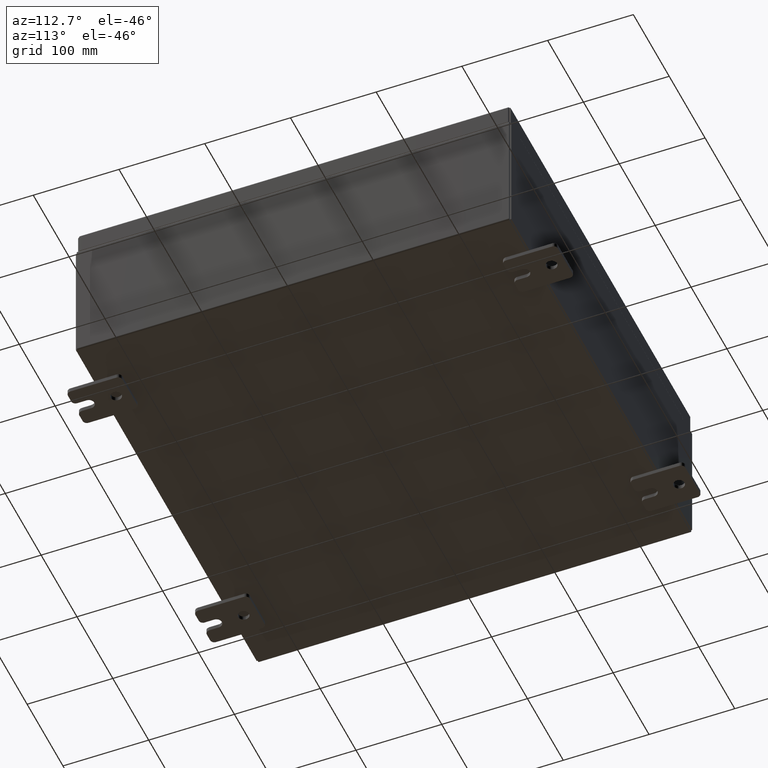
[diagram: clean part render]
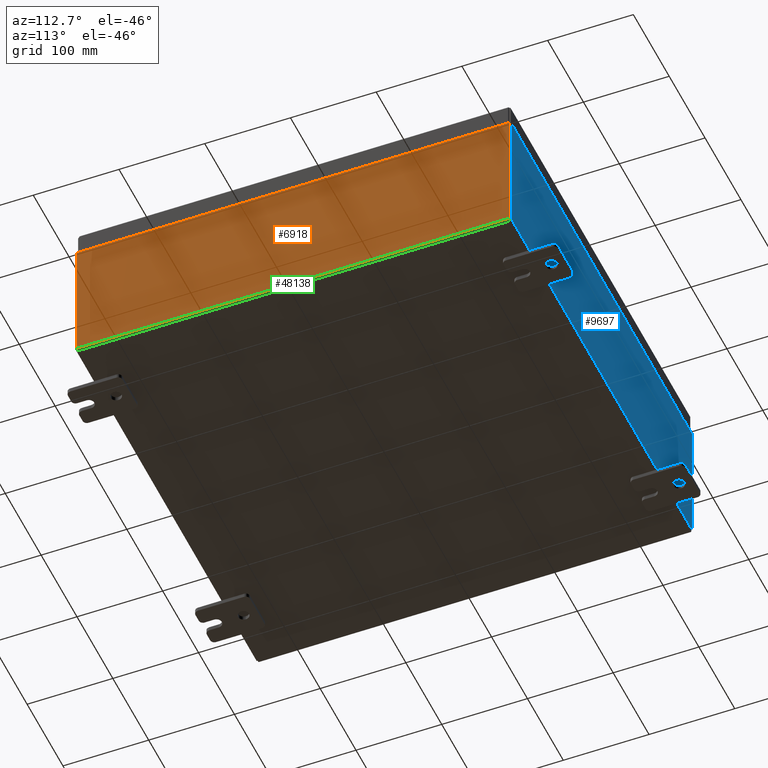
[diagram: same view with three faces highlighted in distinct colors, each labeled with its STEP entity id]
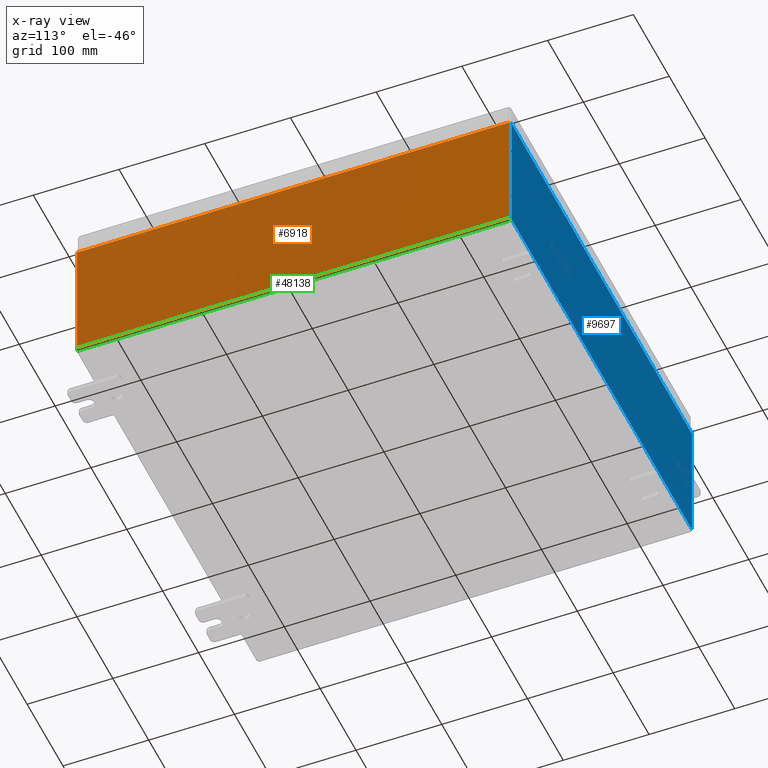
[diagram: x-ray of the same camera — body ghosted, the three highlighted faces saturated]
A machine part, auxiliary view with three faces highlighted in distinct colors.
The next image is the same camera in x-ray (body ghosted, the three faces saturated) — at least one of them is partly hidden behind the body in this view.
Their STEP definitions:

[orange] entity #6918 — the highlighted planar face has unit normal (-1, 0, 0).
#261 = CARTESIAN_POINT ( 'NONE',  ( 10.00000000000000000, 0.0000000000000000000, -3.344806387242682200E-014 ) ) ;
#2388 = DIRECTION ( 'NONE',  ( -0.0000000000000000000, -1.000000000000000000, -0.0000000000000000000 ) ) ;
#6826 = CARTESIAN_POINT ( 'NONE',  ( 10.00000000000001800, 9.925299999999998200, 5.837600000000000100 ) ) ;
#6918 = ADVANCED_FACE ( 'NONE', ( #40494 ), #53369, .F. ) ;
#9975 = DIRECTION ( 'NONE',  ( -1.000000000000000000, 0.0000000000000000000, 3.319545939341922800E-015 ) ) ;
#12065 = CARTESIAN_POINT ( 'NONE',  ( 10.00000000000000000, 9.925300000000001800, -3.344806387242682200E-014 ) ) ;
#12938 = ORIENTED_EDGE ( 'NONE', *, *, #53053, .F. ) ;
#13193 = EDGE_CURVE ( 'NONE', #52707, #28190, #24924, .T. ) ;
#14969 = ORIENTED_EDGE ( 'NONE', *, *, #13193, .T. ) ;
#19295 = EDGE_CURVE ( 'NONE', #28190, #36712, #25426, .T. ) ;
#20957 = CARTESIAN_POINT ( 'NONE',  ( 10.00000000000000000, -9.925299999999998200, -3.344806387242682200E-014 ) ) ;
#24022 = CARTESIAN_POINT ( 'NONE',  ( 10.00000000000001800, 9.925299999999996500, 5.837600000000000100 ) ) ;
#24924 = LINE ( 'NONE', #6826, #60551 ) ;
#25426 = LINE ( 'NONE', #20957, #62578 ) ;
#28087 = AXIS2_PLACEMENT_3D ( 'NONE', #261, #9975, #43840 ) ;
#28190 = VERTEX_POINT ( 'NONE', #40258 ) ;
#29353 = LINE ( 'NONE', #12065, #43717 ) ;
#30932 = ORIENTED_EDGE ( 'NONE', *, *, #19295, .T. ) ;
#31391 = CARTESIAN_POINT ( 'NONE',  ( 10.00000000000000000, -9.925299999999998200, 0.01299999999999986800 ) ) ;
#32803 = VECTOR ( 'NONE', #2388, 39.37007874015748100 ) ;
#34942 = VERTEX_POINT ( 'NONE', #58573 ) ;
#36712 = VERTEX_POINT ( 'NONE', #61494 ) ;
#40258 = CARTESIAN_POINT ( 'NONE',  ( 10.00000000000002000, -9.925299999999998200, 5.837600000000000100 ) ) ;
#40494 = FACE_OUTER_BOUND ( 'NONE', #52684, .T. ) ;
#40681 = DIRECTION ( 'NONE',  ( -0.0000000000000000000, -1.000000000000000000, -0.0000000000000000000 ) ) ;
#43717 = VECTOR ( 'NONE', #45928, 39.37007874015748100 ) ;
#43840 = DIRECTION ( 'NONE',  ( 3.319545939341922800E-015, 0.0000000000000000000, 1.000000000000000000 ) ) ;
#45928 = DIRECTION ( 'NONE',  ( 3.319545939341922800E-015, 0.0000000000000000000, 1.000000000000000000 ) ) ;
#46617 = EDGE_CURVE ( 'NONE', #34942, #52707, #29353, .T. ) ;
#48726 = ORIENTED_EDGE ( 'NONE', *, *, #46617, .T. ) ;
#52684 = EDGE_LOOP ( 'NONE', ( #14969, #30932, #12938, #48726 ) ) ;
#52707 = VERTEX_POINT ( 'NONE', #24022 ) ;
#53053 = EDGE_CURVE ( 'NONE', #34942, #36712, #58608, .T. ) ;
#53369 = PLANE ( 'NONE',  #28087 ) ;
#54837 = DIRECTION ( 'NONE',  ( -3.319545939341922800E-015, 0.0000000000000000000, -1.000000000000000000 ) ) ;
#58573 = CARTESIAN_POINT ( 'NONE',  ( 10.00000000000000000, 9.925300000000000000, 0.01299999999999986800 ) ) ;
#58608 = LINE ( 'NONE', #31391, #32803 ) ;
#60551 = VECTOR ( 'NONE', #40681, 39.37007874015748100 ) ;
#61494 = CARTESIAN_POINT ( 'NONE',  ( 10.00000000000000000, -9.925299999999998200, 0.01299999999999985900 ) ) ;
#62578 = VECTOR ( 'NONE', #54837, 39.37007874015748100 ) ;

[blue] entity #9697 — the highlighted planar face has unit normal (0, -1, 0).
#562 = CARTESIAN_POINT ( 'NONE',  ( -8.887200000000000000, 0.0000000000000000000, 2.912300000000000600 ) ) ;
#649 = VERTEX_POINT ( 'NONE', #61772 ) ;
#2378 = ORIENTED_EDGE ( 'NONE', *, *, #27128, .T. ) ;
#3597 = DIRECTION ( 'NONE',  ( 0.0000000000000000000, 0.0000000000000000000, 1.000000000000000000 ) ) ;
#4119 = AXIS2_PLACEMENT_3D ( 'NONE', #55470, #26453, #60346 ) ;
#4380 = EDGE_CURVE ( 'NONE', #43705, #27585, #31574, .T. ) ;
#5065 = VECTOR ( 'NONE', #45715, 39.37007874015748100 ) ;
#5783 = VERTEX_POINT ( 'NONE', #60524 ) ;
#6219 = CARTESIAN_POINT ( 'NONE',  ( 9.925300000000000000, 0.0000000000000000000, -2.925299999999999600 ) ) ;
#6486 = DIRECTION ( 'NONE',  ( 0.0000000000000000000, 0.0000000000000000000, -1.000000000000000000 ) ) ;
#6582 = LINE ( 'NONE', #21580, #5065 ) ;
#8600 = ORIENTED_EDGE ( 'NONE', *, *, #9777, .T. ) ;
#9697 = ADVANCED_FACE ( 'NONE', ( #50137 ), #49108, .F. ) ;
#9773 = VECTOR ( 'NONE', #3597, 39.37007874015748100 ) ;
#9777 = EDGE_CURVE ( 'NONE', #27585, #26050, #58476, .T. ) ;
#11358 = VERTEX_POINT ( 'NONE', #23812 ) ;
#11739 = LINE ( 'NONE', #562, #37501 ) ;
#12690 = ORIENTED_EDGE ( 'NONE', *, *, #34435, .F. ) ;
#14021 = DIRECTION ( 'NONE',  ( -1.000000000000000000, -0.0000000000000000000, -0.0000000000000000000 ) ) ;
#14713 = VERTEX_POINT ( 'NONE', #37179 ) ;
#14999 = CARTESIAN_POINT ( 'NONE',  ( 8.887200000000000000, 0.0000000000000000000, 0.0000000000000000000 ) ) ;
#15644 = VERTEX_POINT ( 'NONE', #24120 ) ;
#16232 = CARTESIAN_POINT ( 'NONE',  ( -8.924550000000000000, 0.0000000000000000000, 2.925300000000000500 ) ) ;
#18208 = EDGE_CURVE ( 'NONE', #32037, #43417, #11739, .T. ) ;
#19423 = EDGE_CURVE ( 'NONE', #649, #15644, #61056, .T. ) ;
#20041 = ORIENTED_EDGE ( 'NONE', *, *, #27225, .T. ) ;
#20484 = CARTESIAN_POINT ( 'NONE',  ( -9.925300000000000000, 0.0000000000000000000, 2.925300000000000500 ) ) ;
#21058 = LINE ( 'NONE', #40345, #58206 ) ;
#21580 = CARTESIAN_POINT ( 'NONE',  ( 9.925300000000000000, 0.0000000000000000000, 2.925300000000000500 ) ) ;
#22617 = CARTESIAN_POINT ( 'NONE',  ( -9.925300000000000000, 0.0000000000000000000, 2.925300000000000500 ) ) ;
#22630 = LINE ( 'NONE', #61643, #9773 ) ;
#22678 = VECTOR ( 'NONE', #44784, 39.37007874015748100 ) ;
#23480 = EDGE_CURVE ( 'NONE', #5783, #33070, #61777, .T. ) ;
#23812 = CARTESIAN_POINT ( 'NONE',  ( 9.925300000000000000, 0.0000000000000000000, 2.925300000000000500 ) ) ;
#24120 = CARTESIAN_POINT ( 'NONE',  ( 8.887200000000000000, 0.0000000000000000000, 2.874950000000000600 ) ) ;
#24788 = CARTESIAN_POINT ( 'NONE',  ( -8.905874999999998200, 0.0000000000000000000, 2.874950000000000600 ) ) ;
#24950 = DIRECTION ( 'NONE',  ( 0.0000000000000000000, -1.000000000000000000, 0.0000000000000000000 ) ) ;
#25099 = AXIS2_PLACEMENT_3D ( 'NONE', #24788, #58684, #29678 ) ;
#25852 = ORIENTED_EDGE ( 'NONE', *, *, #4380, .T. ) ;
#25899 = EDGE_CURVE ( 'NONE', #15644, #43417, #42691, .T. ) ;
#26050 = VERTEX_POINT ( 'NONE', #16232 ) ;
#26305 = CARTESIAN_POINT ( 'NONE',  ( 8.887200000000000000, 0.0000000000000000000, 2.912300000000000600 ) ) ;
#26453 = DIRECTION ( 'NONE',  ( -0.0000000000000000000, 1.000000000000000000, -0.0000000000000000000 ) ) ;
#27128 = EDGE_CURVE ( 'NONE', #45704, #43705, #33482, .T. ) ;
#27225 = EDGE_CURVE ( 'NONE', #14713, #11358, #31969, .T. ) ;
#27585 = VERTEX_POINT ( 'NONE', #31331 ) ;
#29066 = DIRECTION ( 'NONE',  ( 1.000000000000000000, 0.0000000000000000000, 0.0000000000000000000 ) ) ;
#29678 = DIRECTION ( 'NONE',  ( 0.0000000000000000000, 0.0000000000000000000, -1.000000000000000000 ) ) ;
#30693 = ORIENTED_EDGE ( 'NONE', *, *, #59581, .F. ) ;
#31331 = CARTESIAN_POINT ( 'NONE',  ( -9.925300000000000000, 0.0000000000000000000, 2.925300000000000500 ) ) ;
#31574 = LINE ( 'NONE', #22617, #42952 ) ;
#31776 = ORIENTED_EDGE ( 'NONE', *, *, #46595, .T. ) ;
#31969 = LINE ( 'NONE', #43645, #56235 ) ;
#32031 = EDGE_LOOP ( 'NONE', ( #39500, #48280, #12690, #36949, #62724, #35189, #30693, #20041, #31776, #2378, #25852, #8600 ) ) ;
#32037 = VERTEX_POINT ( 'NONE', #54110 ) ;
#33070 = VERTEX_POINT ( 'NONE', #60596 ) ;
#33223 = EDGE_CURVE ( 'NONE', #33070, #26050, #22630, .T. ) ;
#33482 = LINE ( 'NONE', #38344, #60793 ) ;
#34435 = EDGE_CURVE ( 'NONE', #32037, #5783, #21058, .T. ) ;
#35040 = CARTESIAN_POINT ( 'NONE',  ( 8.924549999999875600, 0.0000000000000000000, -3.873760455015925100E-013 ) ) ;
#35189 = ORIENTED_EDGE ( 'NONE', *, *, #19423, .F. ) ;
#35544 = LINE ( 'NONE', #35040, #22678 ) ;
#36949 = ORIENTED_EDGE ( 'NONE', *, *, #18208, .T. ) ;
#37179 = CARTESIAN_POINT ( 'NONE',  ( 8.924550000000000000, 0.0000000000000000000, 2.925300000000000500 ) ) ;
#37501 = VECTOR ( 'NONE', #44353, 39.37007874015748100 ) ;
#38344 = CARTESIAN_POINT ( 'NONE',  ( -9.925300000000000000, 0.0000000000000000000, -2.925299999999999600 ) ) ;
#39500 = ORIENTED_EDGE ( 'NONE', *, *, #33223, .F. ) ;
#40345 = CARTESIAN_POINT ( 'NONE',  ( -8.887200000000000000, 0.0000000000000000000, 0.0000000000000000000 ) ) ;
#42691 = LINE ( 'NONE', #14999, #52534 ) ;
#42952 = VECTOR ( 'NONE', #56525, 39.37007874015748100 ) ;
#43417 = VERTEX_POINT ( 'NONE', #26305 ) ;
#43645 = CARTESIAN_POINT ( 'NONE',  ( -9.925300000000000000, 0.0000000000000000000, 2.925300000000000500 ) ) ;
#43705 = VERTEX_POINT ( 'NONE', #48095 ) ;
#43987 = DIRECTION ( 'NONE',  ( 0.0000000000000000000, 0.0000000000000000000, 1.000000000000000000 ) ) ;
#44000 = CARTESIAN_POINT ( 'NONE',  ( 0.0000000000000000000, 0.0000000000000000000, 0.0000000000000000000 ) ) ;
#44353 = DIRECTION ( 'NONE',  ( 1.000000000000000000, 0.0000000000000000000, 0.0000000000000000000 ) ) ;
#44385 = AXIS2_PLACEMENT_3D ( 'NONE', #44000, #24950, #58842 ) ;
#44784 = DIRECTION ( 'NONE',  ( -4.340572780400004900E-014, 0.0000000000000000000, -1.000000000000000000 ) ) ;
#45559 = VECTOR ( 'NONE', #54555, 39.37007874015748100 ) ;
#45704 = VERTEX_POINT ( 'NONE', #6219 ) ;
#45715 = DIRECTION ( 'NONE',  ( 0.0000000000000000000, 0.0000000000000000000, -1.000000000000000000 ) ) ;
#46595 = EDGE_CURVE ( 'NONE', #11358, #45704, #6582, .T. ) ;
#48095 = CARTESIAN_POINT ( 'NONE',  ( -9.925300000000000000, 0.0000000000000000000, -2.925299999999999600 ) ) ;
#48280 = ORIENTED_EDGE ( 'NONE', *, *, #23480, .F. ) ;
#49108 = PLANE ( 'NONE',  #44385 ) ;
#50137 = FACE_OUTER_BOUND ( 'NONE', #32031, .T. ) ;
#52534 = VECTOR ( 'NONE', #43987, 39.37007874015748100 ) ;
#54110 = CARTESIAN_POINT ( 'NONE',  ( -8.887200000000000000, 0.0000000000000000000, 2.912300000000000600 ) ) ;
#54555 = DIRECTION ( 'NONE',  ( 1.000000000000000000, 0.0000000000000000000, 0.0000000000000000000 ) ) ;
#55470 = CARTESIAN_POINT ( 'NONE',  ( 8.905875000000000000, 0.0000000000000000000, 2.874950000000000600 ) ) ;
#56235 = VECTOR ( 'NONE', #29066, 39.37007874015748100 ) ;
#56525 = DIRECTION ( 'NONE',  ( -0.0000000000000000000, -0.0000000000000000000, 1.000000000000000000 ) ) ;
#58206 = VECTOR ( 'NONE', #6486, 39.37007874015748100 ) ;
#58476 = LINE ( 'NONE', #20484, #45559 ) ;
#58684 = DIRECTION ( 'NONE',  ( -0.0000000000000000000, 1.000000000000000000, -0.0000000000000000000 ) ) ;
#58842 = DIRECTION ( 'NONE',  ( 0.0000000000000000000, -0.0000000000000000000, -1.000000000000000000 ) ) ;
#59581 = EDGE_CURVE ( 'NONE', #14713, #649, #35544, .T. ) ;
#60346 = DIRECTION ( 'NONE',  ( 0.0000000000000000000, 0.0000000000000000000, -1.000000000000000000 ) ) ;
#60524 = CARTESIAN_POINT ( 'NONE',  ( -8.887200000000000000, 0.0000000000000000000, 2.874950000000000600 ) ) ;
#60596 = CARTESIAN_POINT ( 'NONE',  ( -8.924549999999998200, 0.0000000000000000000, 2.874950000000000600 ) ) ;
#60793 = VECTOR ( 'NONE', #14021, 39.37007874015748100 ) ;
#61056 = CIRCLE ( 'NONE', #4119, 0.01867500000000003900 ) ;
#61643 = CARTESIAN_POINT ( 'NONE',  ( -8.924550000000000000, 0.0000000000000000000, 0.0000000000000000000 ) ) ;
#61772 = CARTESIAN_POINT ( 'NONE',  ( 8.924550000000000000, 0.0000000000000000000, 2.874950000000000600 ) ) ;
#61777 = CIRCLE ( 'NONE', #25099, 0.01867500000000003900 ) ;
#62724 = ORIENTED_EDGE ( 'NONE', *, *, #25899, .F. ) ;

[green] entity #48138 — the highlighted cylindrical surface (edge-blend (fillet) strip) has radius 2.2276 mm, axis along (0, 1, 0).
#1476 = CARTESIAN_POINT ( 'NONE',  ( 9.912300000000000100, 9.925300000000001800, 0.01300000000000015000 ) ) ;
#2388 = DIRECTION ( 'NONE',  ( -0.0000000000000000000, -1.000000000000000000, -0.0000000000000000000 ) ) ;
#3745 = EDGE_CURVE ( 'NONE', #37621, #36712, #43739, .T. ) ;
#5230 = AXIS2_PLACEMENT_3D ( 'NONE', #8501, #42380, #13377 ) ;
#8501 = CARTESIAN_POINT ( 'NONE',  ( 9.912300000000000100, -9.925299999999998200, 0.01300000000000015000 ) ) ;
#13377 = DIRECTION ( 'NONE',  ( 0.0000000000000000000, 0.0000000000000000000, 1.000000000000000000 ) ) ;
#15591 = FACE_OUTER_BOUND ( 'NONE', #47131, .T. ) ;
#19034 = CARTESIAN_POINT ( 'NONE',  ( 9.912300000000000100, -9.925299999999998200, -0.07469999999999998900 ) ) ;
#24921 = ORIENTED_EDGE ( 'NONE', *, *, #3745, .F. ) ;
#27140 = DIRECTION ( 'NONE',  ( 0.0000000000000000000, 1.000000000000000000, 0.0000000000000000000 ) ) ;
#29985 = LINE ( 'NONE', #45126, #31483 ) ;
#31391 = CARTESIAN_POINT ( 'NONE',  ( 10.00000000000000000, -9.925299999999998200, 0.01299999999999986800 ) ) ;
#31483 = VECTOR ( 'NONE', #40231, 39.37007874015748100 ) ;
#32803 = VECTOR ( 'NONE', #2388, 39.37007874015748100 ) ;
#33955 = ORIENTED_EDGE ( 'NONE', *, *, #50324, .F. ) ;
#34942 = VERTEX_POINT ( 'NONE', #58573 ) ;
#36712 = VERTEX_POINT ( 'NONE', #61494 ) ;
#36724 = AXIS2_PLACEMENT_3D ( 'NONE', #1476, #54595, #59494 ) ;
#36783 = VERTEX_POINT ( 'NONE', #56829 ) ;
#37621 = VERTEX_POINT ( 'NONE', #19034 ) ;
#39803 = CYLINDRICAL_SURFACE ( 'NONE', #36724, 0.08770000000000026400 ) ;
#40231 = DIRECTION ( 'NONE',  ( -0.0000000000000000000, -1.000000000000000000, -0.0000000000000000000 ) ) ;
#42380 = DIRECTION ( 'NONE',  ( -0.0000000000000000000, -1.000000000000000000, -0.0000000000000000000 ) ) ;
#43739 = CIRCLE ( 'NONE', #5230, 0.08770000000000009700 ) ;
#45126 = CARTESIAN_POINT ( 'NONE',  ( 9.912300000000000100, 9.925300000000001800, -0.07469999999999996100 ) ) ;
#45749 = CIRCLE ( 'NONE', #51876, 0.08770000000000009700 ) ;
#47131 = EDGE_LOOP ( 'NONE', ( #33955, #55197, #49366, #24921 ) ) ;
#48138 = ADVANCED_FACE ( 'NONE', ( #15591 ), #39803, .T. ) ;
#49366 = ORIENTED_EDGE ( 'NONE', *, *, #53053, .T. ) ;
#50324 = EDGE_CURVE ( 'NONE', #36783, #37621, #29985, .T. ) ;
#51876 = AXIS2_PLACEMENT_3D ( 'NONE', #56138, #27140, #61019 ) ;
#51989 = EDGE_CURVE ( 'NONE', #34942, #36783, #45749, .T. ) ;
#53053 = EDGE_CURVE ( 'NONE', #34942, #36712, #58608, .T. ) ;
#54595 = DIRECTION ( 'NONE',  ( 0.0000000000000000000, 1.000000000000000000, 0.0000000000000000000 ) ) ;
#55197 = ORIENTED_EDGE ( 'NONE', *, *, #51989, .F. ) ;
#56138 = CARTESIAN_POINT ( 'NONE',  ( 9.912300000000000100, 9.925300000000000000, 0.01300000000000015000 ) ) ;
#56829 = CARTESIAN_POINT ( 'NONE',  ( 9.912300000000000100, 9.925300000000000000, -0.07469999999999996100 ) ) ;
#58573 = CARTESIAN_POINT ( 'NONE',  ( 10.00000000000000000, 9.925300000000000000, 0.01299999999999986800 ) ) ;
#58608 = LINE ( 'NONE', #31391, #32803 ) ;
#59494 = DIRECTION ( 'NONE',  ( 1.000000000000000000, 0.0000000000000000000, -3.309679011708404900E-015 ) ) ;
#61019 = DIRECTION ( 'NONE',  ( 0.0000000000000000000, 0.0000000000000000000, 1.000000000000000000 ) ) ;
#61494 = CARTESIAN_POINT ( 'NONE',  ( 10.00000000000000000, -9.925299999999998200, 0.01299999999999985900 ) ) ;